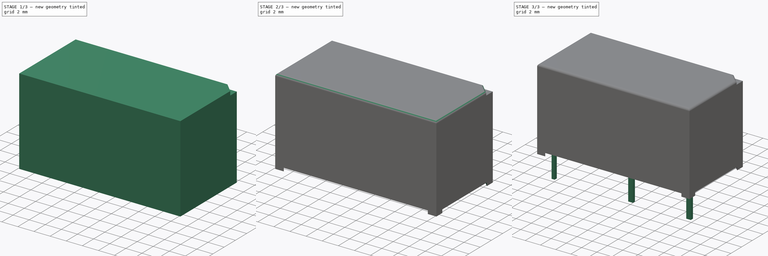
[diagram: build sequence overview — one tinted view per stage of 3, left to right]
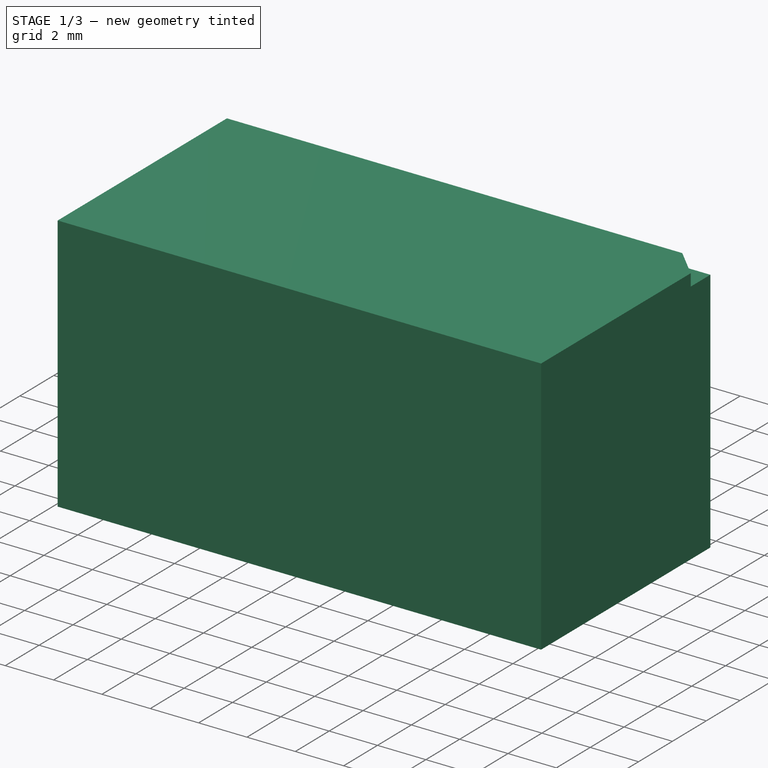
[diagram: stage 1 of 3 — iso view after this stage's code; geometry added in this stage tinted green]
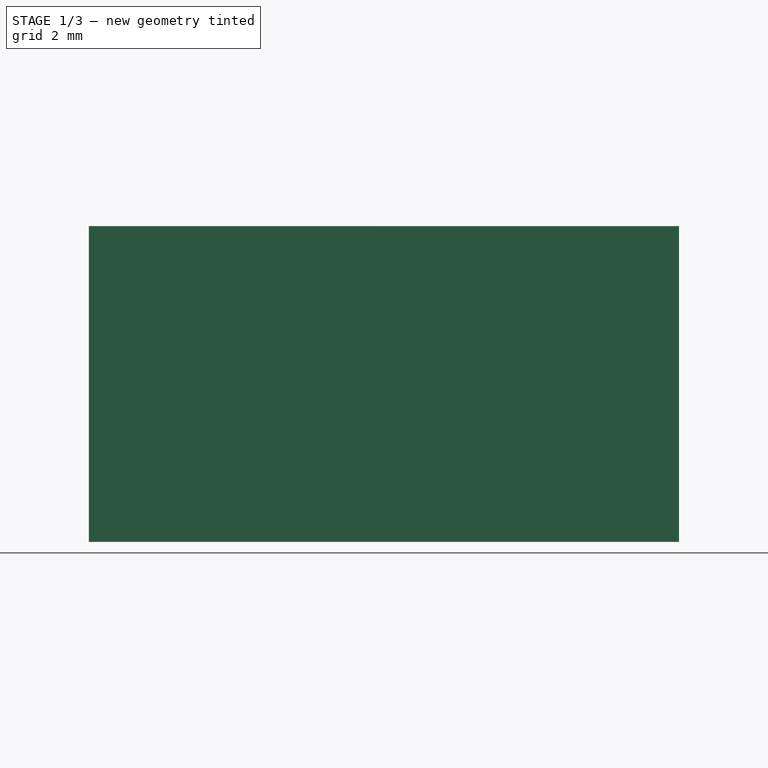
[diagram: stage 1 of 3 — front view after this stage's code; geometry added in this stage tinted green]
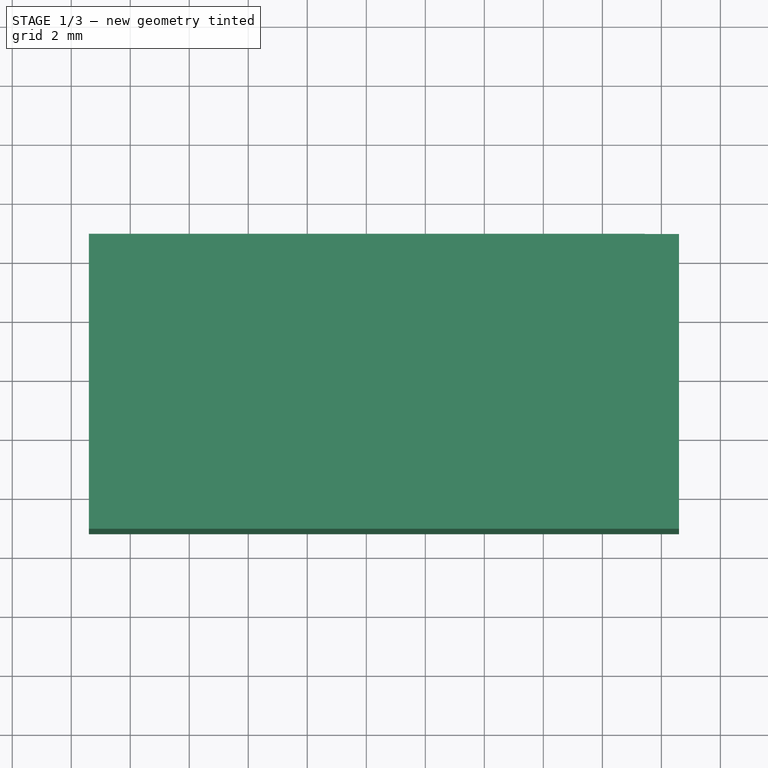
[diagram: stage 1 of 3 — top view after this stage's code; geometry added in this stage tinted green]
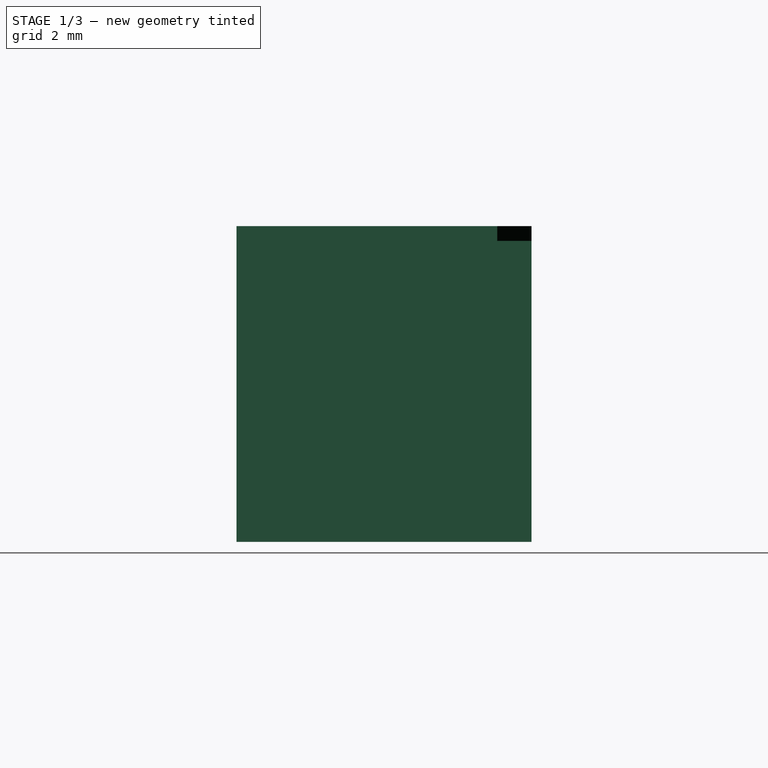
[diagram: stage 1 of 3 — right view after this stage's code; geometry added in this stage tinted green]
FCSTD DOCUMENT  (FreeCAD 0.16R6712 (Git))
Label: Relay_SPST_Finder_32.21-x300
License: All rights reserved
LicenseURL: http://en.wikipedia.org/wiki/All_rights_reserved
objects: Sketcher::SketchObject×4, Part::Feature×3, PartDesign::Pad×2, PartDesign::Pocket×2, App::DocumentObjectGroup×1, PartDesign::Fillet×1, Part::MultiFuse×1
note: 17 computed .brp shape members not serialized (recipe doc carries the construction recipe); baked Part::Feature solids carry a one-line shape summary decoded from their .brp

FEATURE [Part::Feature] FusionAxisZ1  label="Z"
  shape: bbox 0.8 x 0.8 x 14 mm, 8 faces (baked)
FEATURE [Part::Feature] FusionAxisY1  label="Y"
  Placement = pos=(0,0,0.05) rot=(-1,0,0;1.5708rad)
  shape: bbox 0.8 x 14 x 0.8 mm, 8 faces (baked)
FEATURE [Part::Feature] FusionAxisX1  label="X"
  Placement = pos=(0,-0.05,0) rot=(0,1,0;1.5708rad)
  shape: bbox 14 x 0.8 x 0.8 mm, 8 faces (baked)
FEATURE [App::DocumentObjectGroup] axis
  Group = -> [FusionAxisZ1,FusionAxisY1,FusionAxisX1]
FEATURE [Sketcher::SketchObject] Sketch001
  expr: Constraints[8] = (10 - 7.62) / 2
  sketch-geometry (4):
    g0: LineSegment StartX=-1.4 StartY=-1.19 StartZ=0 EndX=18.6 EndY=-1.19 EndZ=0
    g1: LineSegment StartX=18.6 StartY=-1.19 StartZ=0 EndX=18.6 EndY=8.81 EndZ=0
    g2: LineSegment StartX=18.6 StartY=8.81 StartZ=0 EndX=-1.4 EndY=8.81 EndZ=0
    g3: LineSegment StartX=-1.4 StartY=8.81 StartZ=0 EndX=-1.4 EndY=-1.19 EndZ=0
  constraints (12):
    c: Coincident(g0,g1)
    c: Coincident(g1,g2)
    c: Coincident(g2,g3)
    c: Coincident(g3,g0)
    c: Horizontal(g0)
    c: Horizontal(g2)
    c: Vertical(g1)
    c: Vertical(g3)
    c: DistanceY(g0,g-1) = 1.19
    c: DistanceY(g3,g3) = 10
    c: DistanceX(g2,g2) = 20
    c: DistanceX(g0,g-1) = 1.4
FEATURE [PartDesign::Pad] Pad001
  Length = 10.7
  Length2 = 100
  Sketch = -> Sketch001
  Type = 0
FEATURE [Sketcher::SketchObject] Sketch002
  ExternalGeometry = -> [Pad001]
  Placement = pos=(0,0,10.7) rot=(0,0,1;0rad)
  Support = -> Pad001 [Face6]
  sketch-geometry (3):
    g0: LineSegment StartX=17.25 StartY=9 StartZ=0 EndX=18.75 EndY=7.5 EndZ=0
    g1: LineSegment StartX=18.75 StartY=7.5 StartZ=0 EndX=18.75 EndY=9 EndZ=0
    g2: LineSegment StartX=18.75 StartY=9 StartZ=0 EndX=17.25 EndY=9 EndZ=0
  constraints (9):
    c: Coincident(g1,g0)
    c: Vertical(g1)
    c: Coincident(g2,g1)
    c: Coincident(g2,g0)
    c: Horizontal(g2)
    c: Angle(g1,g0) = 0.785398
    c: DistanceY(g1,g1) = 1.5
    c: DistanceX(g-1,g1) = 18.75
    c: DistanceY(g-1,g0) = 7.5
FEATURE [PartDesign::Pocket] Pocket
  Length = 0.5
  Sketch = -> Sketch002
  Type = 0
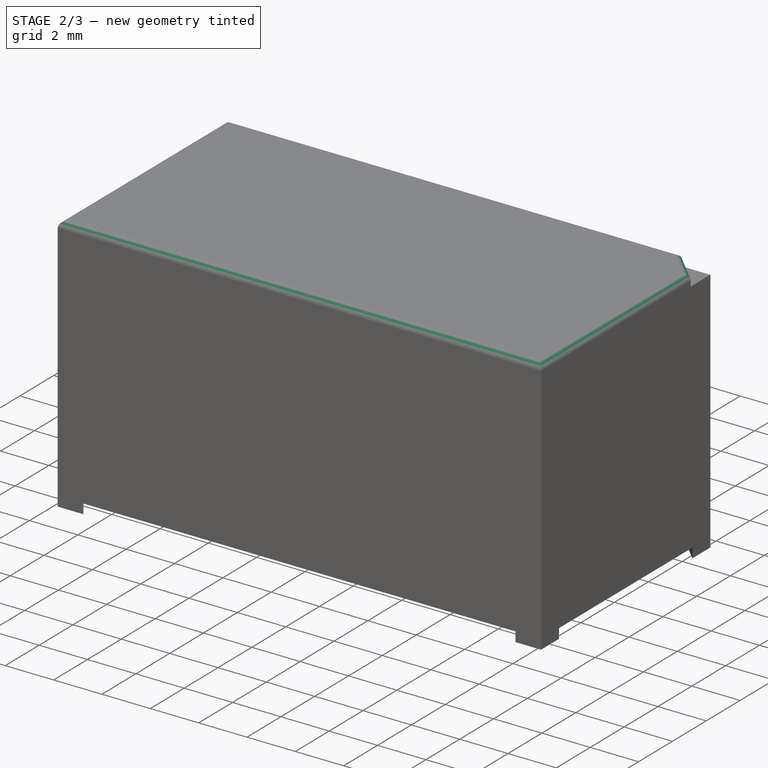
[diagram: stage 2 of 3 — iso view after this stage's code; geometry added in this stage tinted green]
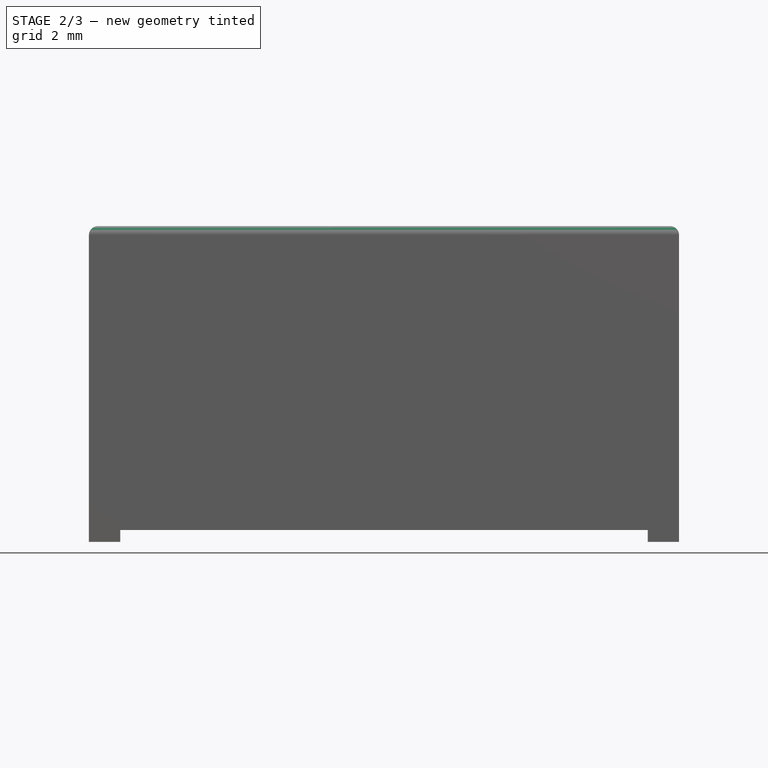
[diagram: stage 2 of 3 — front view after this stage's code; geometry added in this stage tinted green]
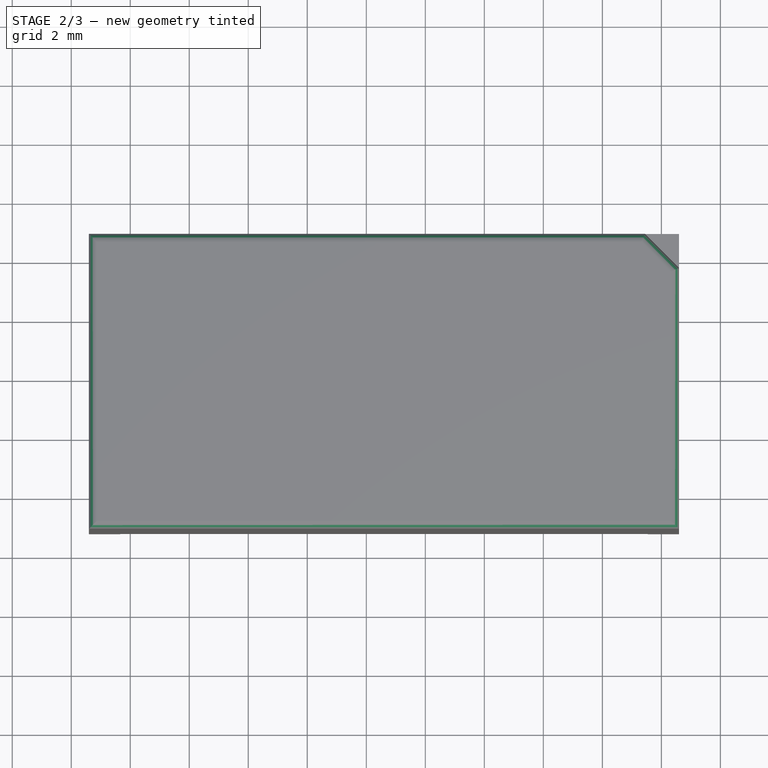
[diagram: stage 2 of 3 — top view after this stage's code; geometry added in this stage tinted green]
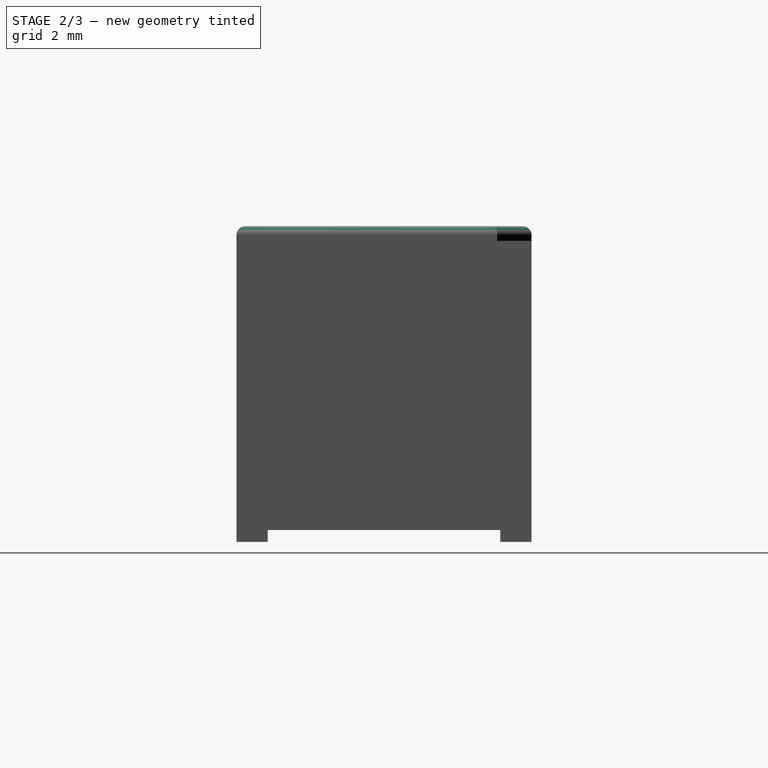
[diagram: stage 2 of 3 — right view after this stage's code; geometry added in this stage tinted green]
FEATURE [PartDesign::Fillet] Fillet
  Base = -> Pocket [Edge4,Edge12,Edge14,Edge15,Edge7]
  Radius = 0.3
FEATURE [Sketcher::SketchObject] Sketch003
  ExternalGeometry = -> [Fillet]
  Placement = pos=(0,0,0) rot=(1,0,0;3.14159rad)
  Support = -> Fillet [Face4]
  sketch-geometry (8):
    g0: LineSegment StartX=-1.4 StartY=0.12934 StartZ=0 EndX=-0.33934 EndY=1.19 EndZ=0
    g1: LineSegment StartX=-0.33934 StartY=1.19 StartZ=0 EndX=17.5393 EndY=1.19 EndZ=0
    g2: LineSegment StartX=17.5393 StartY=1.19 StartZ=0 EndX=18.6 EndY=0.12934 EndZ=0
    g3: LineSegment StartX=18.6 StartY=0.12934 StartZ=0 EndX=18.6 EndY=-7.74934 EndZ=0
    g4: LineSegment StartX=18.6 StartY=-7.74934 StartZ=0 EndX=17.5393 EndY=-8.81 EndZ=0
    g5: LineSegment StartX=17.5393 StartY=-8.81 StartZ=0 EndX=-0.33934 EndY=-8.81 EndZ=0
    g6: LineSegment StartX=-0.33934 StartY=-8.81 StartZ=0 EndX=-1.4 EndY=-7.74934 EndZ=0
    g7: LineSegment StartX=-1.4 StartY=-7.74934 StartZ=0 EndX=-1.4 EndY=0.12934 EndZ=0
  constraints (24):
    c: Coincident(g0,g1)
    c: Coincident(g0,g7)
    c: Coincident(g1,g2)
    c: Coincident(g2,g3)
    c: Coincident(g3,g4)
    c: Coincident(g4,g5)
    c: Coincident(g5,g6)
    c: Coincident(g6,g7)
    c: Angle(g4,g-6) = 2.35619
    c: Angle(g-6,g6) = 2.35619
    c: Angle(g-4,g2) = 2.35619
    c: Angle(g0,g-4) = 2.35619
    c: PointOnObject(g0,g-4)
    c: PointOnObject(g1,g-4)
    c: PointOnObject(g2,g-3)
    c: PointOnObject(g3,g-3)
    c: PointOnObject(g4,g-6)
    c: PointOnObject(g5,g-6)
    c: PointOnObject(g6,g-5)
    c: PointOnObject(g0,g-5)
    c: Distance(g2) = 1.5
    c: Equal(g0,g2)
    c: Equal(g2,g4)
    c: Equal(g4,g6)
FEATURE [PartDesign::Pocket] Pocket001
  Length = 0.4
  Sketch = -> Sketch003
  Type = 0
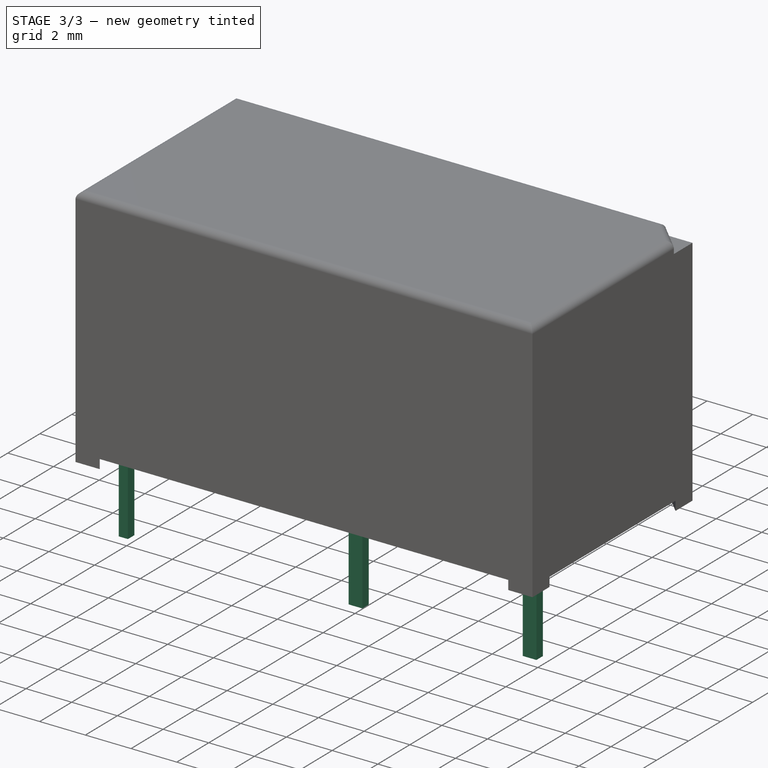
[diagram: stage 3 of 3 — iso view after this stage's code; geometry added in this stage tinted green]
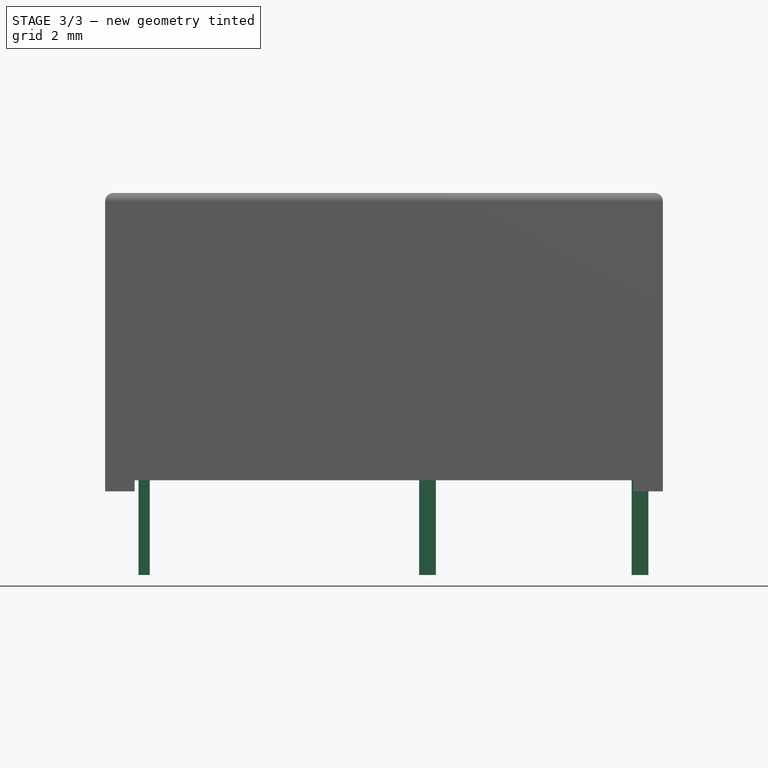
[diagram: stage 3 of 3 — front view after this stage's code; geometry added in this stage tinted green]
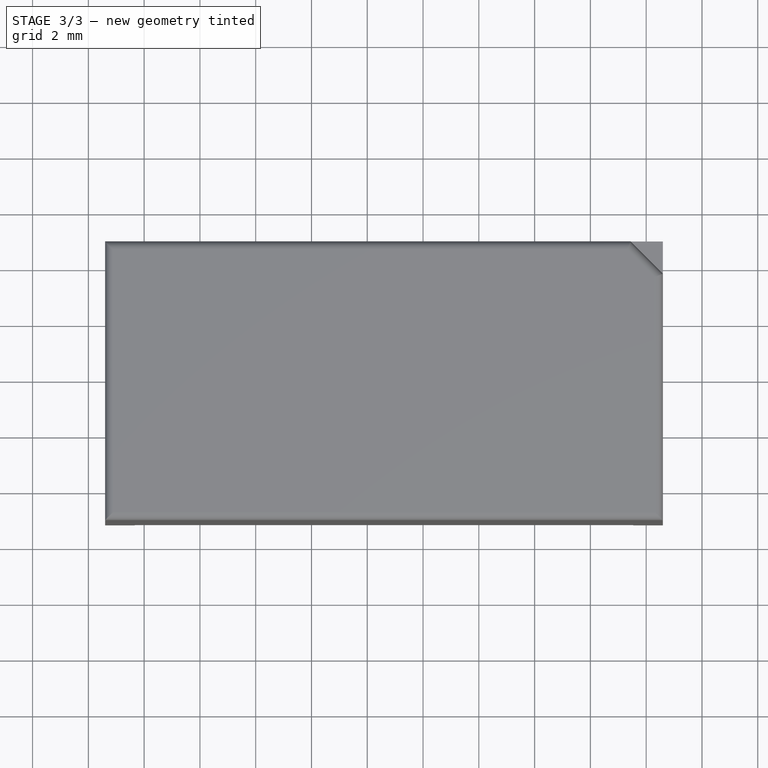
[diagram: stage 3 of 3 — top view after this stage's code; geometry added in this stage tinted green]
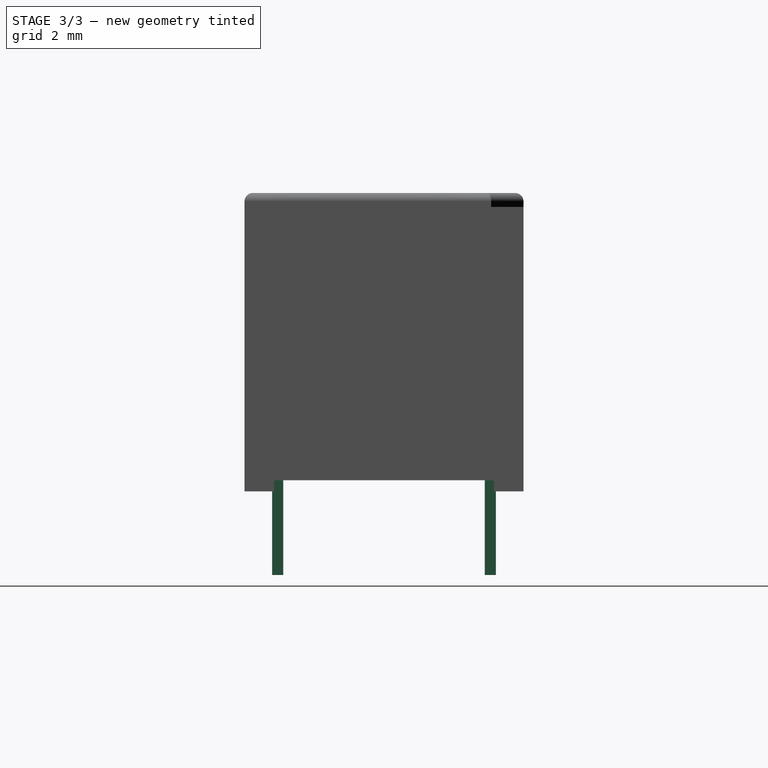
[diagram: stage 3 of 3 — right view after this stage's code; geometry added in this stage tinted green]
FEATURE [Sketcher::SketchObject] Sketch
  Placement = pos=(0,0,0.5) rot=(0,0,1;1.5708rad)
  sketch-geometry (23):
    g0: LineSegment StartX=-0.2 StartY=0.2 StartZ=0 EndX=0.2 EndY=0.2 EndZ=0
    g1: LineSegment StartX=0.2 StartY=0.2 StartZ=0 EndX=0.2 EndY=-0.2 EndZ=0
    g2: LineSegment StartX=0.2 StartY=-0.2 StartZ=0 EndX=-0.2 EndY=-0.2 EndZ=0
    g3: LineSegment StartX=-0.2 StartY=-0.2 StartZ=0 EndX=-0.2 EndY=0.2 EndZ=0
    g4: GeomPoint [constr] X=0 Y=0.2 Z=0
    g5: GeomPoint [constr] X=0.2 Y=0 Z=0
    g6: LineSegment StartX=7.42 StartY=0.2 StartZ=0 EndX=7.82 EndY=0.2 EndZ=0
    g7: LineSegment StartX=7.82 StartY=0.2 StartZ=0 EndX=7.82 EndY=-0.2 EndZ=0
    g8: LineSegment StartX=7.82 StartY=-0.2 StartZ=0 EndX=7.42 EndY=-0.2 EndZ=0
    g9: LineSegment StartX=7.42 StartY=-0.2 StartZ=0 EndX=7.42 EndY=0.2 EndZ=0
    g10: LineSegment StartX=-0.2 StartY=-9.86 StartZ=0 EndX=0.2 EndY=-9.86 EndZ=0
    g11: LineSegment StartX=0.2 StartY=-9.86 StartZ=0 EndX=0.2 EndY=-10.46 EndZ=0
    g12: LineSegment StartX=0.2 StartY=-10.46 StartZ=0 EndX=-0.2 EndY=-10.46 EndZ=0
    g13: LineSegment StartX=-0.2 StartY=-10.46 StartZ=0 EndX=-0.2 EndY=-9.86 EndZ=0
    g14: LineSegment StartX=-0.2 StartY=-17.48 StartZ=0 EndX=0.2 EndY=-17.48 EndZ=0
    g15: LineSegment StartX=0.2 StartY=-17.48 StartZ=0 EndX=0.2 EndY=-18.08 EndZ=0
    g16: LineSegment StartX=0.2 StartY=-18.08 StartZ=0 EndX=-0.2 EndY=-18.08 EndZ=0
    g17: LineSegment StartX=-0.2 StartY=-18.08 StartZ=0 EndX=-0.2 EndY=-17.48 EndZ=0
    g18: LineSegment [constr] StartX=-0.2 StartY=0 StartZ=0 EndX=-0.2 EndY=-10.16 EndZ=0
    g19: LineSegment [constr] StartX=-0.2 StartY=0 StartZ=0 EndX=7.42 EndY=0 EndZ=0
    g20: GeomPoint [constr] X=-0.2 Y=-10.16 Z=0
    g21: LineSegment [constr] StartX=-0.2 StartY=-10.16 StartZ=0 EndX=-0.2 EndY=-17.78 EndZ=0
    g22: LineSegment [constr] StartX=-0.2 StartY=-17.78 StartZ=0 EndX=7.42 EndY=-17.78 EndZ=0
  constraints (62):
    c: Coincident(g0,g1)
    c: Coincident(g1,g2)
    c: Coincident(g2,g3)
    c: Coincident(g3,g0)
    c: Horizontal(g0)
    c: Horizontal(g2)
    c: Vertical(g1)
    c: Vertical(g3)
    c: PointOnObject(g4,g0)
    c: PointOnObject(g5,g-1)
    c: Symmetric(g1,g1,g5)
    c: Symmetric(g0,g0,g4)
    c: PointOnObject(g4,g-2)
    c: DistanceY(g3,g3) = 0.4
    c: DistanceX(g0,g0) = 0.4
    c: Coincident(g6,g7)
    c: Coincident(g7,g8)
    c: Coincident(g8,g9)
    c: Coincident(g9,g6)
    c: Horizontal(g6)
    c: Horizontal(g8)
    c: Vertical(g7)
    c: Vertical(g9)
    c: Coincident(g10,g11)
    c: Coincident(g11,g12)
    c: Coincident(g12,g13)
    c: Coincident(g13,g10)
    c: Horizontal(g10)
    c: Horizontal(g12)
    c: Vertical(g11)
    c: Vertical(g13)
    c: Coincident(g14,g15)
    c: Coincident(g15,g16)
    c: Coincident(g16,g17)
    c: Coincident(g17,g14)
    c: Horizontal(g14)
    c: Horizontal(g16)
    c: Vertical(g15)
    c: Vertical(g17)
    c: PointOnObject(g18,g3)
    c: Symmetric(g3,g3,g18)
    c: Coincident(g19,g18)
    c: Horizontal(g19)
    c: Symmetric(g9,g9,g19)
    c: Vertical(g18)
    c: DistanceX(g19,g19) = 7.62
    c: Equal(g6,g0)
    c: Equal(g11,g17)
    c: Symmetric(g13,g13,g20)
    c: Equal(g10,g14)
    c: Equal(g14,g0)
    c: DistanceY(g11,g11) = 0.6
    c: Coincident(g18,g20)
    c: Coincident(g21,g18)
    c: Vertical(g21)
    c: Symmetric(g17,g17,g21)
    c: DistanceY(g21,g21) = 7.62
    c: DistanceY(g18,g18) = 10.16
    c: Horizontal(g22)
    c: Coincident(g21,g22)
    c: DistanceX(g22,g22) = 7.62
    c: Equal(g7,g1)
FEATURE [PartDesign::Pad] Pad
  Length = 3.5
  Length2 = 100
  Placement = pos=(0,0,0.5) rot=(0,0,1;1.5708rad)
  Reversed = true
  Sketch = -> Sketch
  Type = 0
FEATURE [Part::MultiFuse] Pocket001_mp_cp  label="Relay_SPST_Finder_32.21-x300"
  Shapes = -> [Pocket001,Pad]
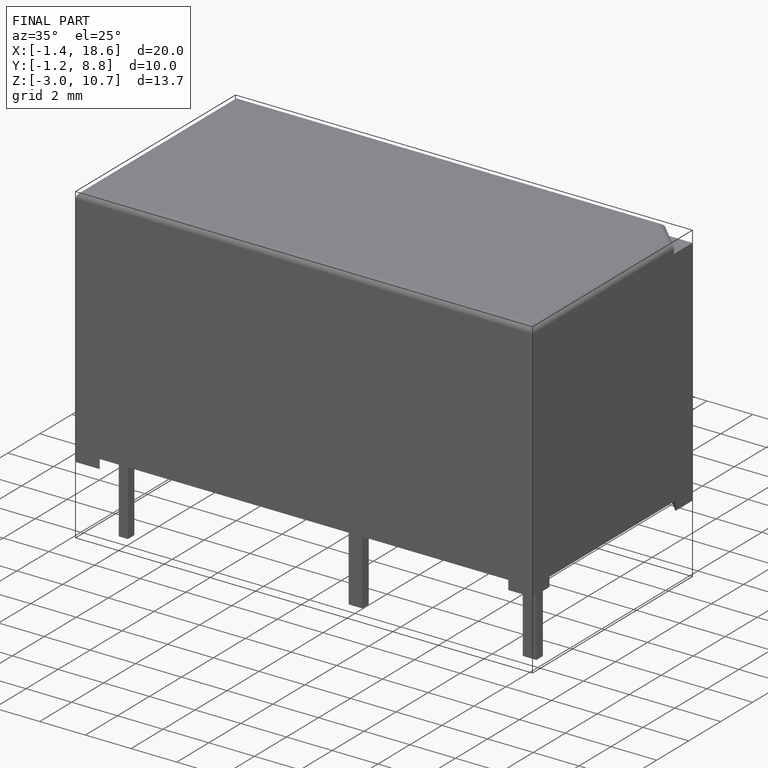
[diagram: finished part — iso view with bounding-box wireframe]
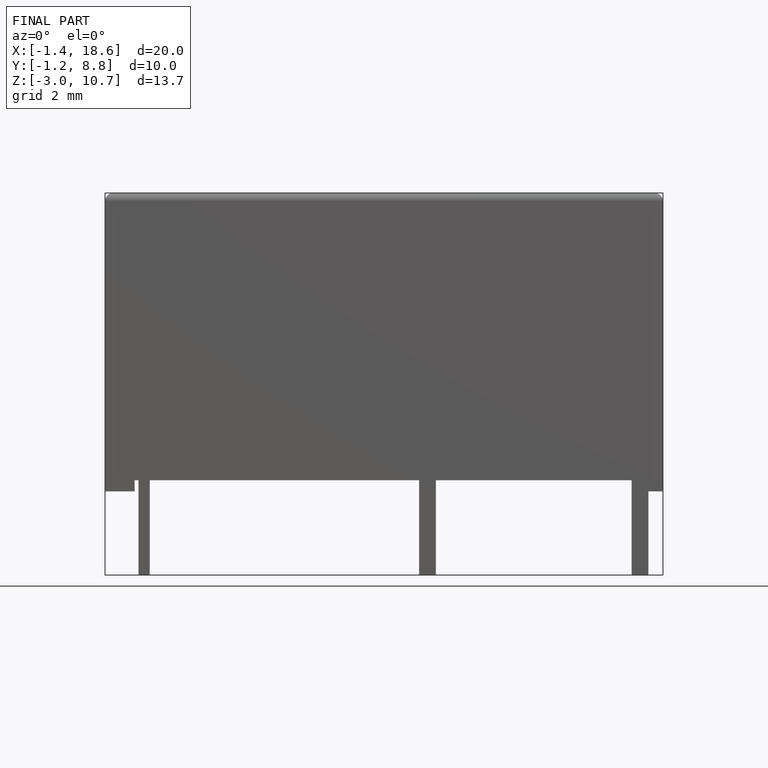
[diagram: finished part — front view with bounding-box wireframe]
